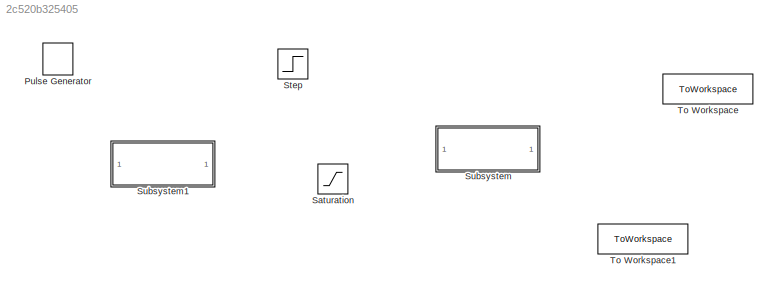
MODEL slx_2c520b325405
KIND model
CONFIG AbsTol = auto
CONFIG EnableMultiTasking = off
CONFIG FixedStep = auto
CONFIG MaxStep = auto
CONFIG MinStep = auto
CONFIG RelTol = 1e-3
CONFIG SampleTimeConstraint = Unconstrained
CONFIG SolverName = VariableStepAuto
CONFIG StartTime = 0.0
CONFIG StopTime = 10.0
BLOCK [DiscretePulseGenerator] Pulse Generator
  Period = 10
  PulseType = Time based
  PulseWidth = 5
BLOCK [Saturate] Saturation
BLOCK [Step] Step
  SampleTime = 0
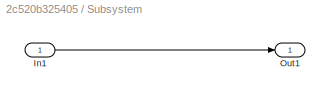
BLOCK [SubSystem] Subsystem
BLOCK [Inport] Subsystem/In1
BLOCK [Outport] Subsystem/Out1
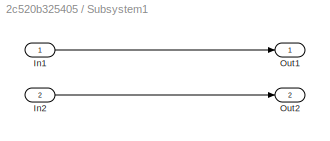
BLOCK [SubSystem] Subsystem1
BLOCK [Inport] Subsystem1/In1
BLOCK [Inport] Subsystem1/In2
  Port = 2
BLOCK [Outport] Subsystem1/Out1
BLOCK [Outport] Subsystem1/Out2
  Port = 2
BLOCK [ToWorkspace] To Workspace
  FixptAsFi = on
  MaxDataPoints = inf
  SampleTime = -1
  SaveFormat = Timeseries
  VariableName = simout
BLOCK [ToWorkspace] To Workspace1
  FixptAsFi = on
  MaxDataPoints = inf
  SampleTime = -1
  SaveFormat = Timeseries
  VariableName = simout1
LINE Subsystem/In1:1 -> Subsystem/Out1:1
LINE Subsystem1/In1:1 -> Subsystem1/Out1:1
LINE Subsystem1/In2:1 -> Subsystem1/Out2:1
